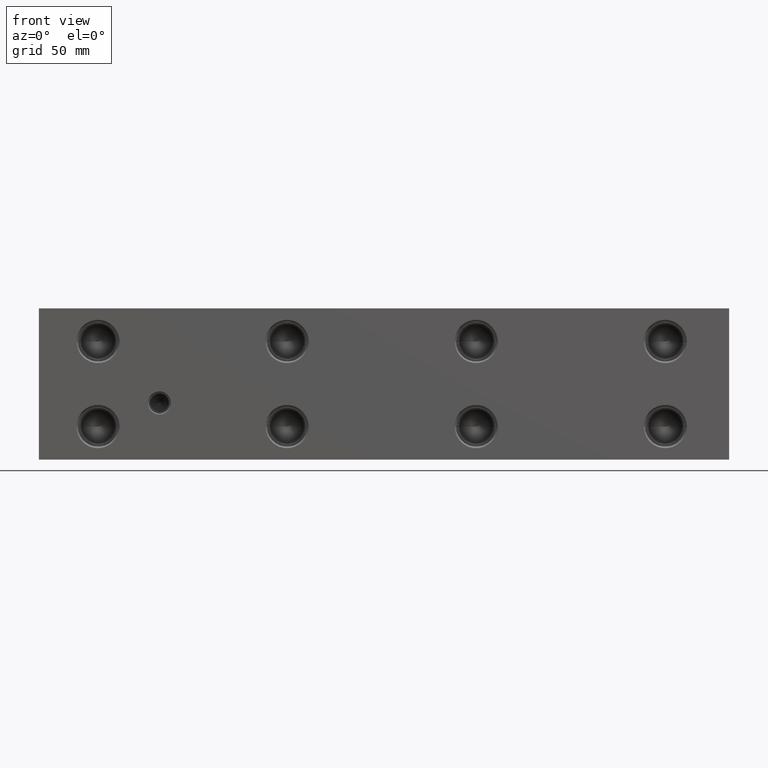
[diagram: clean part render]
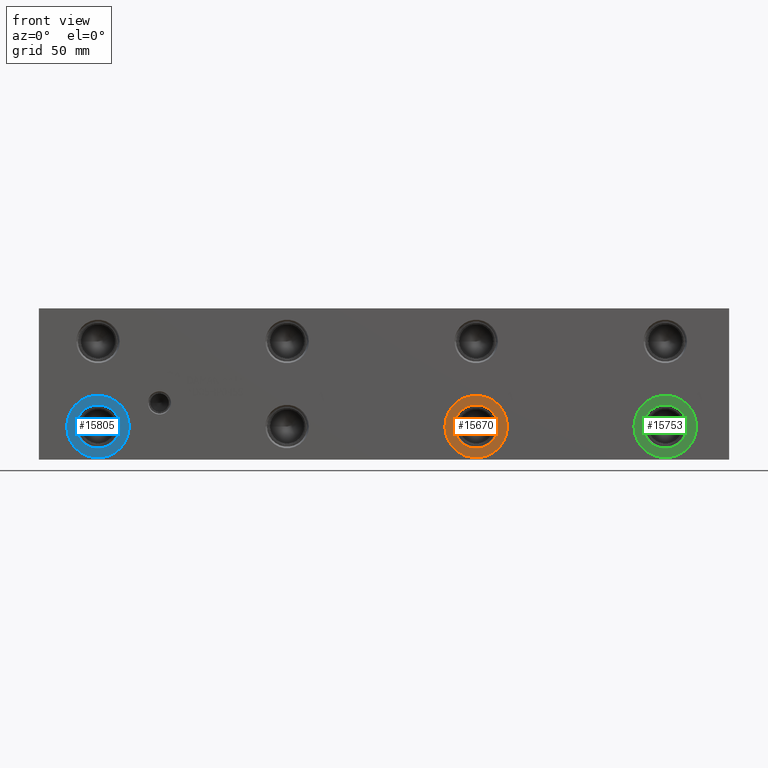
[diagram: same view with three faces highlighted in distinct colors, each labeled with its STEP entity id]
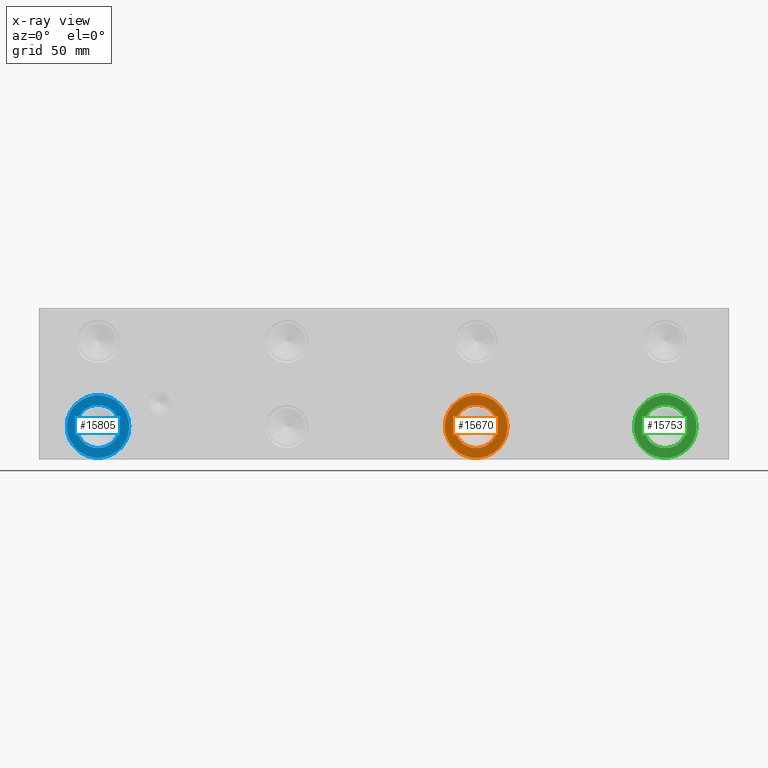
[diagram: x-ray of the same camera — body ghosted, the three highlighted faces saturated]
A machine part, front view with three faces highlighted in distinct colors.
The next image is the same camera in x-ray (body ghosted, the three faces saturated) — at least one of them is partly hidden behind the body in this view.
Their STEP definitions:

[orange] entity #15670 — the highlighted planar face has unit normal (0, 1, 0).
#436=CIRCLE('',#16371,21.0185);
#437=CIRCLE('',#16372,21.0185);
#438=CIRCLE('',#16374,14.5923);
#439=CIRCLE('',#16375,14.5923);
#1283=FACE_BOUND('',#2830,.T.);
#1927=FACE_OUTER_BOUND('',#2829,.T.);
#2829=EDGE_LOOP('',(#12795,#12796));
#2830=EDGE_LOOP('',(#12797,#12798));
#7028=VERTEX_POINT('',#26161);
#7029=VERTEX_POINT('',#26163);
#7030=VERTEX_POINT('',#26167);
#7031=VERTEX_POINT('',#26168);
#9071=EDGE_CURVE('',#7028,#7029,#436,.T.);
#9072=EDGE_CURVE('',#7029,#7028,#437,.T.);
#9073=EDGE_CURVE('',#7030,#7031,#438,.T.);
#9074=EDGE_CURVE('',#7031,#7030,#439,.T.);
#12795=ORIENTED_EDGE('',*,*,#9072,.F.);
#12796=ORIENTED_EDGE('',*,*,#9071,.F.);
#12797=ORIENTED_EDGE('',*,*,#9073,.T.);
#12798=ORIENTED_EDGE('',*,*,#9074,.T.);
#14509=PLANE('',#16373);
#15670=ADVANCED_FACE('',(#1927,#1283),#14509,.F.);
#16371=AXIS2_PLACEMENT_3D('',#26164,#19092,#19093);
#16372=AXIS2_PLACEMENT_3D('',#26165,#19094,#19095);
#16373=AXIS2_PLACEMENT_3D('',#26166,#19096,#19097);
#16374=AXIS2_PLACEMENT_3D('',#26169,#19098,#19099);
#16375=AXIS2_PLACEMENT_3D('',#26170,#19100,#19101);
#19092=DIRECTION('center_axis',(0.,1.,0.));
#19093=DIRECTION('ref_axis',(1.,0.,0.));
#19094=DIRECTION('center_axis',(0.,1.,0.));
#19095=DIRECTION('ref_axis',(1.,0.,0.));
#19096=DIRECTION('center_axis',(0.,1.,0.));
#19097=DIRECTION('ref_axis',(0.,0.,1.));
#19098=DIRECTION('center_axis',(0.,1.,0.));
#19099=DIRECTION('ref_axis',(1.,0.,0.));
#19100=DIRECTION('center_axis',(0.,1.,0.));
#19101=DIRECTION('ref_axis',(1.,0.,0.));
#26161=CARTESIAN_POINT('',(272.6563,0.7874,22.225));
#26163=CARTESIAN_POINT('',(314.6933,0.7874,22.225));
#26164=CARTESIAN_POINT('Origin',(293.6748,0.7874,22.225));
#26165=CARTESIAN_POINT('Origin',(293.6748,0.7874,22.225));
#26166=CARTESIAN_POINT('Origin',(308.2671,0.7874,22.225));
#26167=CARTESIAN_POINT('',(308.2671,0.7874,22.225));
#26168=CARTESIAN_POINT('',(279.0825,0.787400000000004,22.225));
#26169=CARTESIAN_POINT('Origin',(293.6748,0.7874,22.225));
#26170=CARTESIAN_POINT('Origin',(293.6748,0.7874,22.225));

[blue] entity #15805 — the highlighted planar face has unit normal (0, 1, 0).
#640=CIRCLE('',#16710,21.0185);
#641=CIRCLE('',#16711,21.0185);
#642=CIRCLE('',#16713,14.5923);
#643=CIRCLE('',#16714,14.5923);
#1308=FACE_BOUND('',#2990,.T.);
#2062=FACE_OUTER_BOUND('',#2989,.T.);
#2989=EDGE_LOOP('',(#13450,#13451));
#2990=EDGE_LOOP('',(#13452,#13453));
#7247=VERTEX_POINT('',#26829);
#7248=VERTEX_POINT('',#26831);
#7249=VERTEX_POINT('',#26835);
#7250=VERTEX_POINT('',#26836);
#9385=EDGE_CURVE('',#7247,#7248,#640,.T.);
#9386=EDGE_CURVE('',#7248,#7247,#641,.T.);
#9387=EDGE_CURVE('',#7249,#7250,#642,.T.);
#9388=EDGE_CURVE('',#7250,#7249,#643,.T.);
#13450=ORIENTED_EDGE('',*,*,#9386,.F.);
#13451=ORIENTED_EDGE('',*,*,#9385,.F.);
#13452=ORIENTED_EDGE('',*,*,#9387,.T.);
#13453=ORIENTED_EDGE('',*,*,#9388,.T.);
#14534=PLANE('',#16712);
#15805=ADVANCED_FACE('',(#2062,#1308),#14534,.F.);
#16710=AXIS2_PLACEMENT_3D('',#26832,#19880,#19881);
#16711=AXIS2_PLACEMENT_3D('',#26833,#19882,#19883);
#16712=AXIS2_PLACEMENT_3D('',#26834,#19884,#19885);
#16713=AXIS2_PLACEMENT_3D('',#26837,#19886,#19887);
#16714=AXIS2_PLACEMENT_3D('',#26838,#19888,#19889);
#19880=DIRECTION('center_axis',(0.,1.,0.));
#19881=DIRECTION('ref_axis',(1.,0.,0.));
#19882=DIRECTION('center_axis',(0.,1.,0.));
#19883=DIRECTION('ref_axis',(1.,0.,0.));
#19884=DIRECTION('center_axis',(0.,1.,0.));
#19885=DIRECTION('ref_axis',(0.,0.,1.));
#19886=DIRECTION('center_axis',(0.,1.,0.));
#19887=DIRECTION('ref_axis',(1.,0.,0.));
#19888=DIRECTION('center_axis',(0.,1.,0.));
#19889=DIRECTION('ref_axis',(1.,0.,0.));
#26829=CARTESIAN_POINT('',(18.6563,0.7874,22.225));
#26831=CARTESIAN_POINT('',(60.6933,0.7874,22.225));
#26832=CARTESIAN_POINT('Origin',(39.6748,0.7874,22.225));
#26833=CARTESIAN_POINT('Origin',(39.6748,0.7874,22.225));
#26834=CARTESIAN_POINT('Origin',(54.2671,0.7874,22.225));
#26835=CARTESIAN_POINT('',(54.2671,0.7874,22.225));
#26836=CARTESIAN_POINT('',(25.0825,0.787399999999999,22.225));
#26837=CARTESIAN_POINT('Origin',(39.6748,0.7874,22.225));
#26838=CARTESIAN_POINT('Origin',(39.6748,0.7874,22.225));

[green] entity #15753 — the highlighted planar face has unit normal (0, 1, 0).
#565=CIRCLE('',#16583,21.0185);
#566=CIRCLE('',#16584,21.0185);
#567=CIRCLE('',#16586,14.5923);
#568=CIRCLE('',#16587,14.5923);
#1299=FACE_BOUND('',#2929,.T.);
#2010=FACE_OUTER_BOUND('',#2928,.T.);
#2928=EDGE_LOOP('',(#13207,#13208));
#2929=EDGE_LOOP('',(#13209,#13210));
#7165=VERTEX_POINT('',#26577);
#7166=VERTEX_POINT('',#26579);
#7167=VERTEX_POINT('',#26583);
#7168=VERTEX_POINT('',#26584);
#9267=EDGE_CURVE('',#7165,#7166,#565,.T.);
#9268=EDGE_CURVE('',#7166,#7165,#566,.T.);
#9269=EDGE_CURVE('',#7167,#7168,#567,.T.);
#9270=EDGE_CURVE('',#7168,#7167,#568,.T.);
#13207=ORIENTED_EDGE('',*,*,#9268,.F.);
#13208=ORIENTED_EDGE('',*,*,#9267,.F.);
#13209=ORIENTED_EDGE('',*,*,#9269,.T.);
#13210=ORIENTED_EDGE('',*,*,#9270,.T.);
#14525=PLANE('',#16585);
#15753=ADVANCED_FACE('',(#2010,#1299),#14525,.F.);
#16583=AXIS2_PLACEMENT_3D('',#26580,#19583,#19584);
#16584=AXIS2_PLACEMENT_3D('',#26581,#19585,#19586);
#16585=AXIS2_PLACEMENT_3D('',#26582,#19587,#19588);
#16586=AXIS2_PLACEMENT_3D('',#26585,#19589,#19590);
#16587=AXIS2_PLACEMENT_3D('',#26586,#19591,#19592);
#19583=DIRECTION('center_axis',(0.,1.,0.));
#19584=DIRECTION('ref_axis',(1.,0.,0.));
#19585=DIRECTION('center_axis',(0.,1.,0.));
#19586=DIRECTION('ref_axis',(1.,0.,0.));
#19587=DIRECTION('center_axis',(0.,1.,0.));
#19588=DIRECTION('ref_axis',(0.,0.,1.));
#19589=DIRECTION('center_axis',(0.,1.,0.));
#19590=DIRECTION('ref_axis',(1.,0.,0.));
#19591=DIRECTION('center_axis',(0.,1.,0.));
#19592=DIRECTION('ref_axis',(1.,0.,0.));
#26577=CARTESIAN_POINT('',(399.6563,0.7874,22.225));
#26579=CARTESIAN_POINT('',(441.6933,0.7874,22.225));
#26580=CARTESIAN_POINT('Origin',(420.6748,0.7874,22.225));
#26581=CARTESIAN_POINT('Origin',(420.6748,0.7874,22.225));
#26582=CARTESIAN_POINT('Origin',(435.2671,0.7874,22.225));
#26583=CARTESIAN_POINT('',(435.2671,0.7874,22.225));
#26584=CARTESIAN_POINT('',(406.0825,0.787399999999991,22.225));
#26585=CARTESIAN_POINT('Origin',(420.6748,0.7874,22.225));
#26586=CARTESIAN_POINT('Origin',(420.6748,0.7874,22.225));